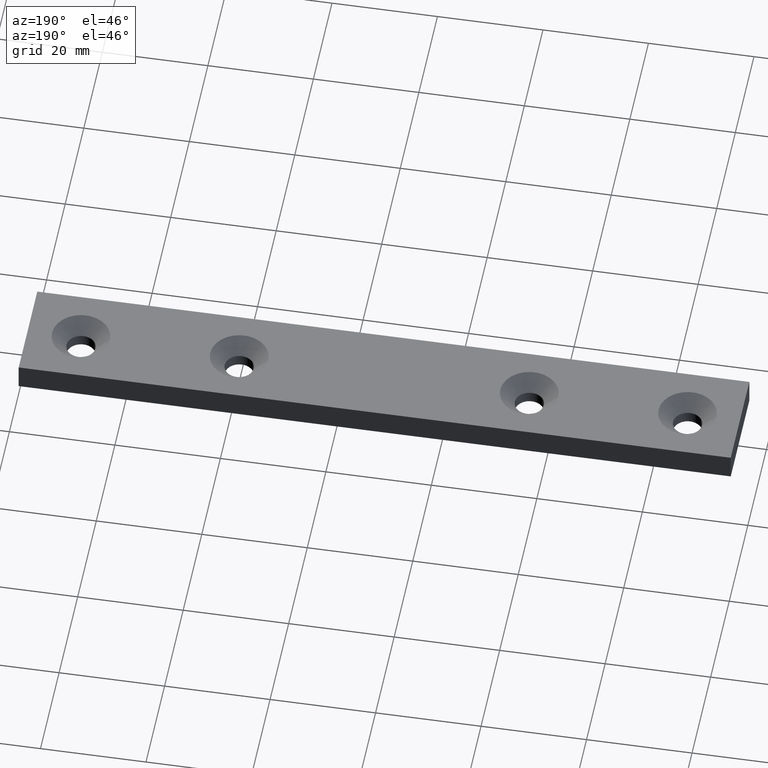
[diagram: clean part render]
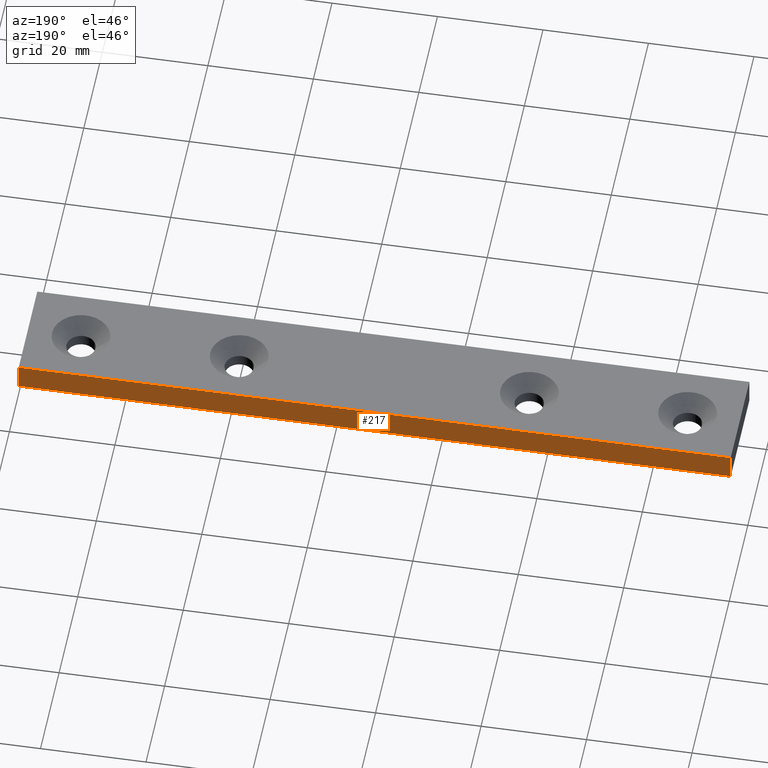
[diagram: same view with one face highlighted and labeled with its STEP entity id]
A machine part, auxiliary view. The second image highlights one B-rep face of the part: STEP entity #217.
In plain terms, the highlighted planar face has unit normal (0, 1, -0).
Its self-contained STEP definition (entity closure, byte-faithful):
#51=FACE_OUTER_BOUND('',#65,.T.);
#65=EDGE_LOOP('',(#163,#164,#165,#166));
#95=LINE('',#329,#107);
#96=LINE('',#331,#108);
#97=LINE('',#333,#109);
#98=LINE('',#334,#110);
#107=VECTOR('',#263,135.);
#108=VECTOR('',#264,5.);
#109=VECTOR('',#265,135.);
#110=VECTOR('',#266,5.);
#119=VERTEX_POINT('',#327);
#120=VERTEX_POINT('',#328);
#121=VERTEX_POINT('',#330);
#122=VERTEX_POINT('',#332);
#139=EDGE_CURVE('',#119,#120,#95,.T.);
#140=EDGE_CURVE('',#120,#121,#96,.T.);
#141=EDGE_CURVE('',#122,#121,#97,.T.);
#142=EDGE_CURVE('',#119,#122,#98,.T.);
#163=ORIENTED_EDGE('',*,*,#139,.T.);
#164=ORIENTED_EDGE('',*,*,#140,.T.);
#165=ORIENTED_EDGE('',*,*,#141,.F.);
#166=ORIENTED_EDGE('',*,*,#142,.F.);
#211=PLANE('',#233);
#217=ADVANCED_FACE('',(#51),#211,.T.);
#233=AXIS2_PLACEMENT_3D('',#326,#261,#262);
#261=DIRECTION('center_axis',(0.,1.,-2.5809571E-8));
#262=DIRECTION('ref_axis',(0.,2.5809571013724E-8,1.));
#263=DIRECTION('',(-1.,0.,0.));
#264=DIRECTION('',(0.,2.58095698146832E-8,1.));
#265=DIRECTION('',(-1.,0.,0.));
#266=DIRECTION('',(0.,2.58095709249062E-8,1.));
#326=CARTESIAN_POINT('Origin',(-5.512832E-16,9.99999999999954,-2.58095696E-7));
#327=CARTESIAN_POINT('',(-5.512832E-16,9.99999999999954,-2.58095696E-7));
#328=CARTESIAN_POINT('',(-135.,9.99999999999954,-2.58095696E-7));
#329=CARTESIAN_POINT('',(-5.512832E-16,9.99999999999954,-2.58095696E-7));
#330=CARTESIAN_POINT('',(-135.,10.0000001290474,4.9999997419043));
#331=CARTESIAN_POINT('',(-135.,9.99999999999954,-2.58095696E-7));
#332=CARTESIAN_POINT('',(-5.512832E-16,10.0000001290474,4.9999997419043));
#333=CARTESIAN_POINT('',(-5.512832E-16,10.0000001290474,4.9999997419043));
#334=CARTESIAN_POINT('',(-5.512832E-16,9.99999999999954,-2.58095696E-7));